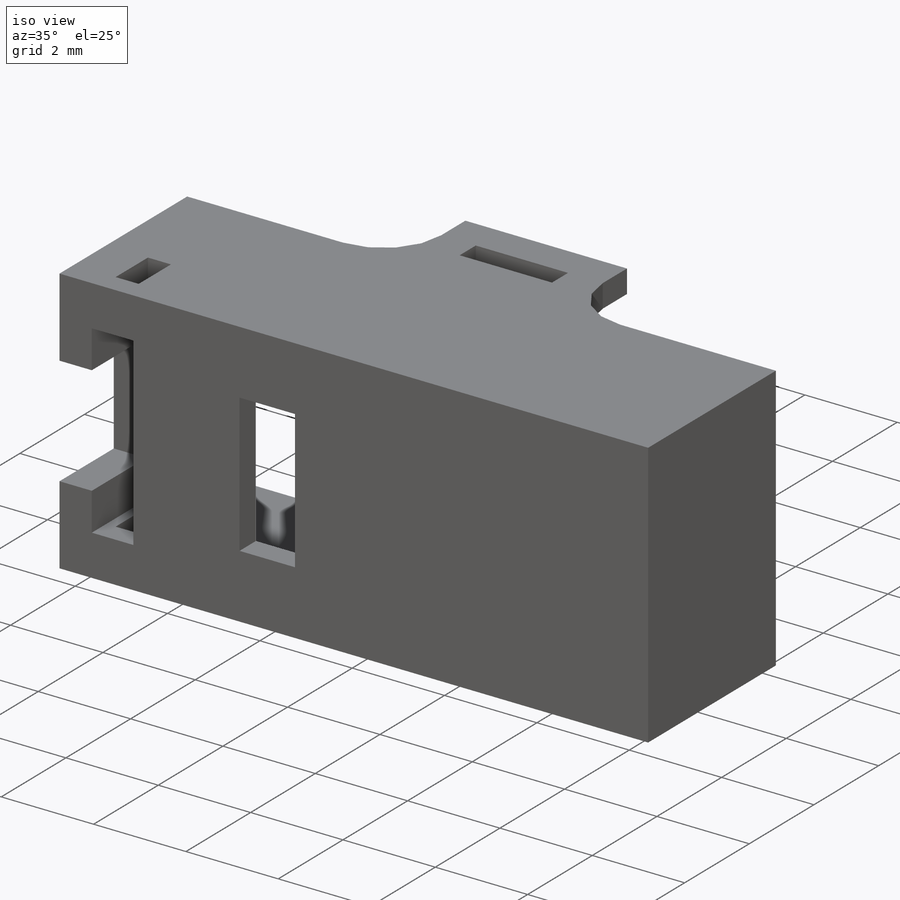
[diagram: iso view]
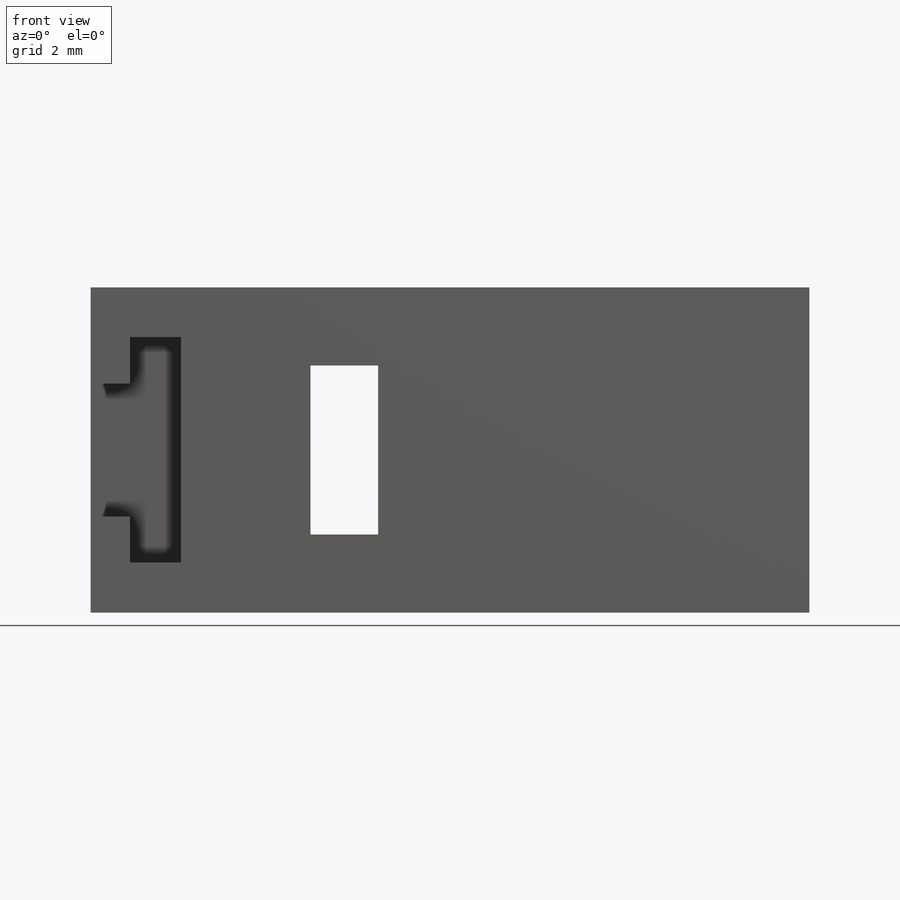
[diagram: front view]
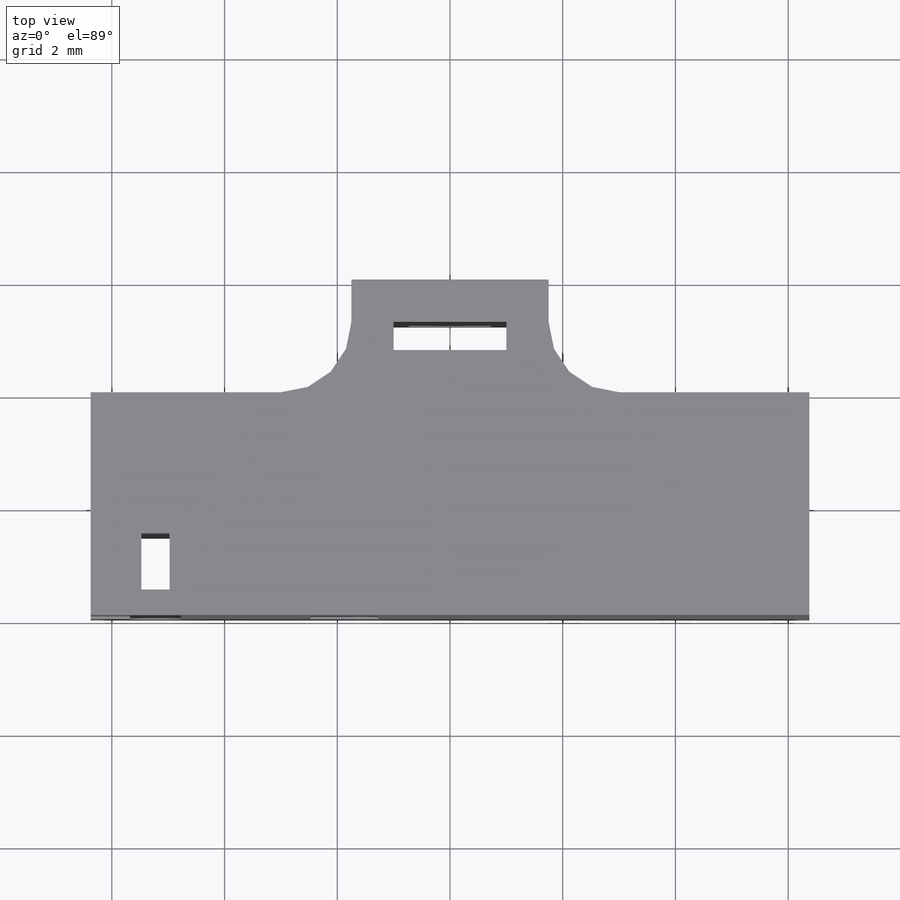
[diagram: top view]
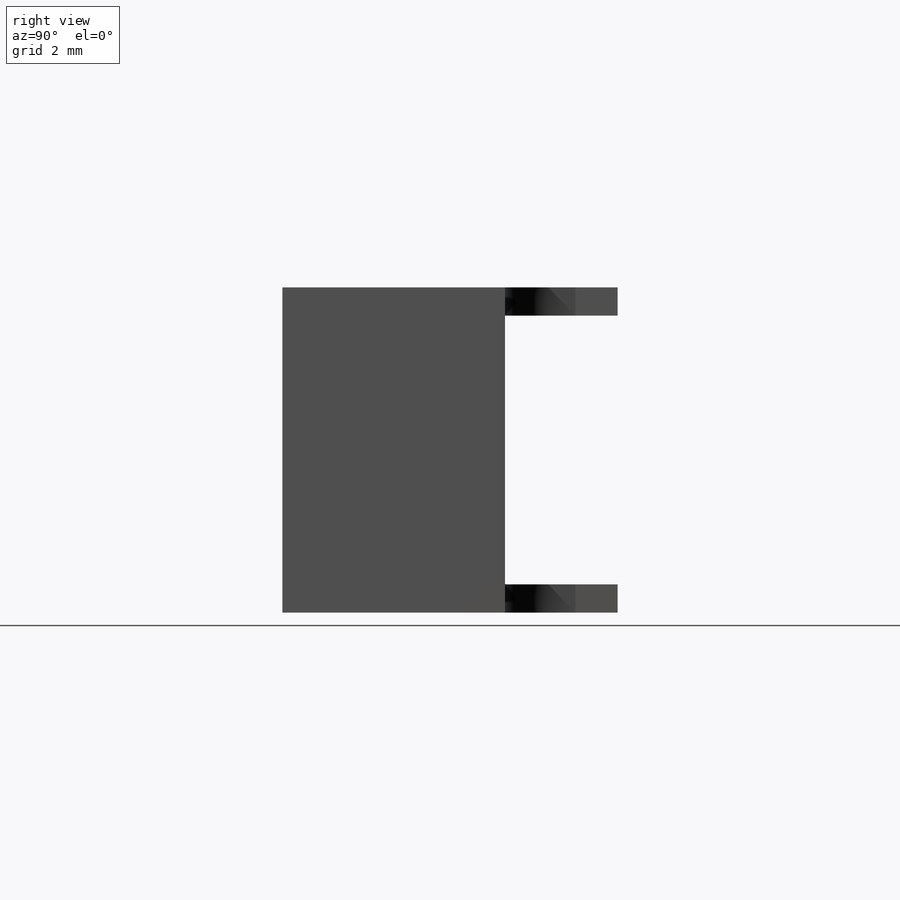
[diagram: right view]
SOLIDWORKS PART (.sldprt)
format: sldprt  version: not decoded by parser v0  size: 249,344 bytes
history: native  units: mm
features: sketch x5, shell x4, plane x3, material x1, extrude x1, cut_extrude x1, mirror x1 + 1 further entry (+10 scaffold rows collapsed)
feature tree (27):
  scaffold x10  (default folders/planes/origin — collapsed)
  material  "Matériau <non spécifié>"
  "Corps de surface"
  plane  "Face"
  plane  "Dessus"
  plane  "Droite"
  sketch  "Esquisse1"  dims[D1=5.77mm D2=12.75mm]
  extrude  "Base-Extrusion"  Depth=5.95mm
  sketch  "Esquisse2"  dims[D1=0.7mm D2=0.9mm D3=4.0mm D4=2.36mm]
  cut_extrude  "Enlèv. mat.-Extru.1"  Depth=1.68mm
  shell  "Coque1"  Thickness=0.5mm
  sketch  "Esquisse3"  dims[c1.D1=3.5mm c1.D2=1.75mm c2.D1=2.0mm c2.D3=0.75mm]
  shell  "Enlèv. mat.-Extru.2"  [1 undecoded]
  mirror  "Symétrie1"
  sketch  "Esquisse4"  dims[D1=2.0mm D2=0.5mm D3=0.75mm D4=1.0mm D5=0.5mm D6=0.45mm]
  shell  "Enlèv. mat.-Extru.3"  [1 undecoded]
  sketch  "Esquisse5"  dims[D1=1.2mm D2=3.0mm D3=1.875mm]
  shell  "Enlèv. mat.-Extru.4"  [1 undecoded]
decode coverage: 8 of 12 modeling features carry decoded parameters; 1 rows unclassified (native names shown)
note: 3 parameter values undecoded
summary: no parameter record found for 3 features
note: suppression state not decoded; provenance and decode notes live in map.json
